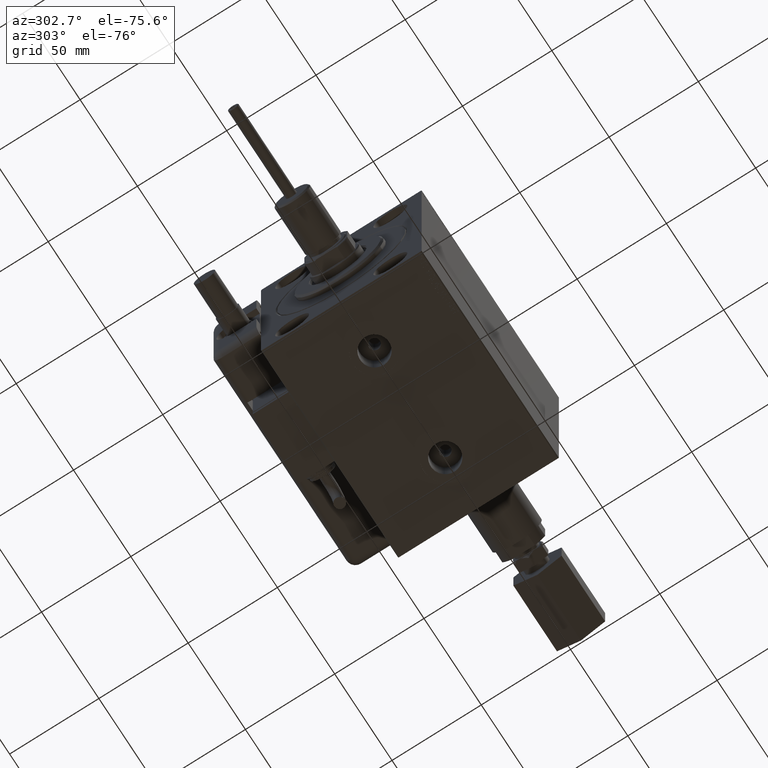
[diagram: clean part render]
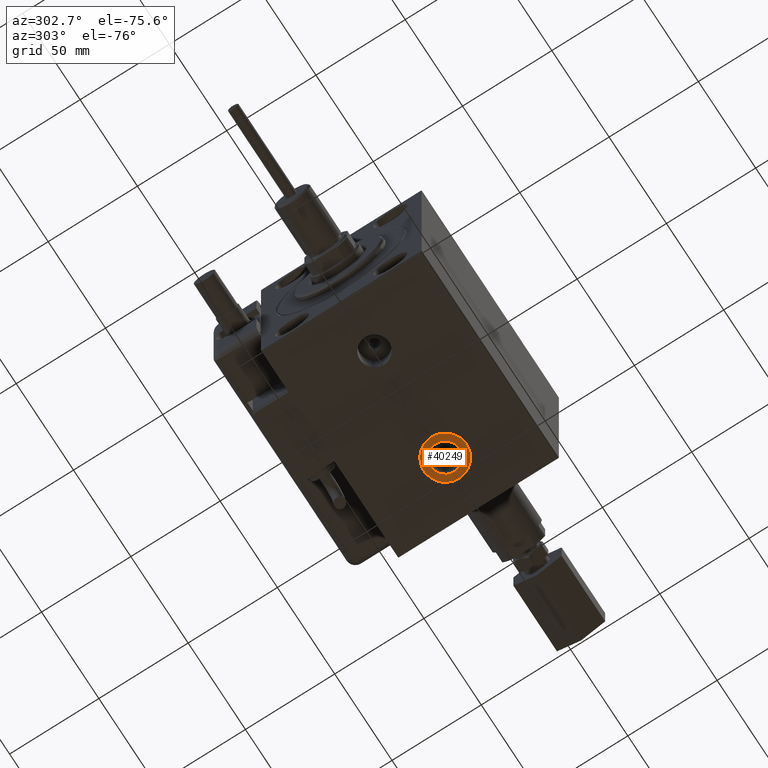
[diagram: same view with one face highlighted and labeled with its STEP entity id]
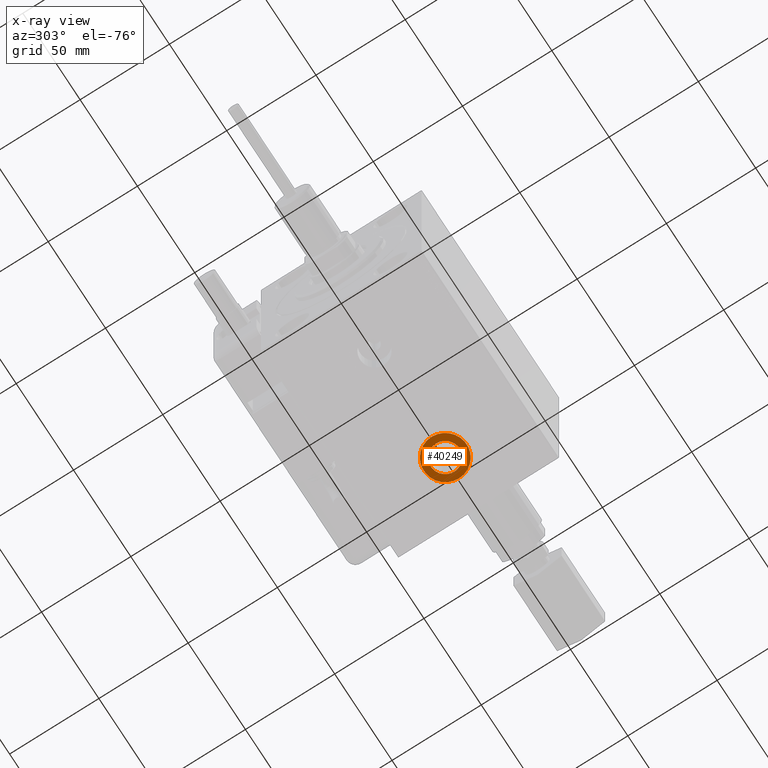
[diagram: x-ray of the same camera — body ghosted, the highlighted face saturated]
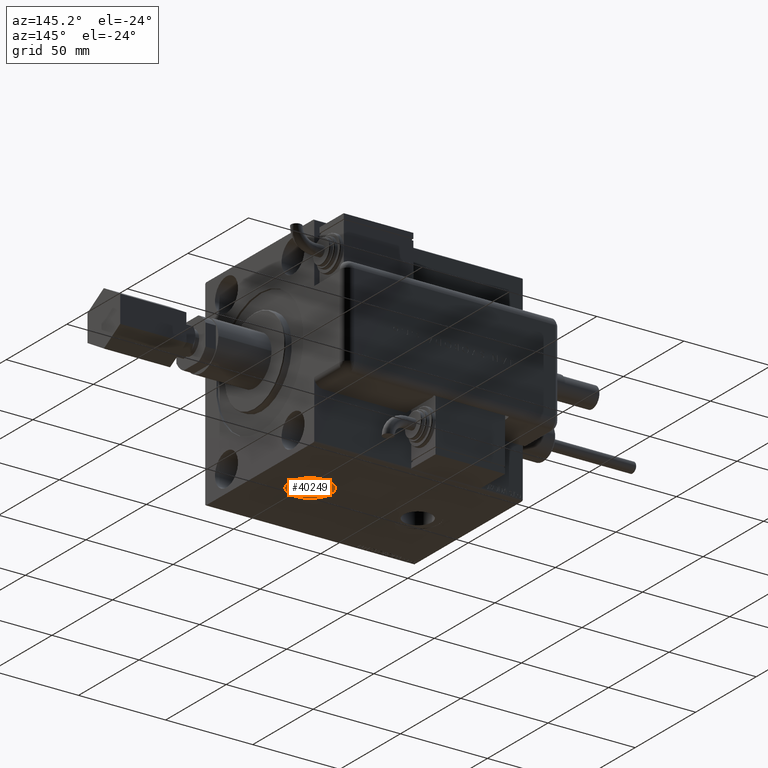
[diagram: same view with one face highlighted and labeled with its STEP entity id]
A machine part, auxiliary view. The second image highlights one B-rep face of the part: STEP entity #40249.
The next image is the same camera in x-ray: the body ghosted, the highlighted face saturated — about 0% of this face is hidden behind the body in this view.
A second angle (auxiliary view) of the same face is appended — the face is thin or edge-on in the first view.
In plain terms, the highlighted planar face has unit normal (0, 0, -1).
Its self-contained STEP definition (entity closure, byte-faithful):
#2056 = DIRECTION ( 'NONE',  ( 0.000000000000000000, 0.000000000000000000, -1.000000000000000000 ) ) ;
#5287 = VERTEX_POINT ( 'NONE', #44372 ) ;
#6459 = CARTESIAN_POINT ( 'NONE',  ( 90.70000000000000284, -1.399743327393117014E-14, -57.40000000000001279 ) ) ;
#7296 = CARTESIAN_POINT ( 'NONE',  ( 82.61500000000000909, -1.399743327393117014E-14, -57.40000000000001279 ) ) ;
#7599 = CIRCLE ( 'NONE', #49071, 12.00000000000001066 ) ;
#10415 = FACE_OUTER_BOUND ( 'NONE', #31425, .T. ) ;
#12355 = AXIS2_PLACEMENT_3D ( 'NONE', #6459, #25325, #35528 ) ;
#12748 = CARTESIAN_POINT ( 'NONE',  ( 90.70000000000000284, -1.399743327393117014E-14, -57.40000000000001279 ) ) ;
#12880 = ORIENTED_EDGE ( 'NONE', *, *, #42923, .F. ) ;
#17171 = AXIS2_PLACEMENT_3D ( 'NONE', #30063, #44270, #57263 ) ;
#17603 = AXIS2_PLACEMENT_3D ( 'NONE', #12748, #54488, #46438 ) ;
#18348 = EDGE_CURVE ( 'NONE', #40367, #32809, #19025, .T. ) ;
#19025 = CIRCLE ( 'NONE', #17171, 8.084999999999995524 ) ;
#19707 = CARTESIAN_POINT ( 'NONE',  ( 90.70000000000000284, -1.399743327393117014E-14, -57.40000000000001279 ) ) ;
#21541 = DIRECTION ( 'NONE',  ( -1.000000000000000000, 0.000000000000000000, 0.000000000000000000 ) ) ;
#24148 = EDGE_CURVE ( 'NONE', #56095, #5287, #48272, .T. ) ;
#25325 = DIRECTION ( 'NONE',  ( 0.000000000000000000, 0.000000000000000000, -1.000000000000000000 ) ) ;
#26162 = CARTESIAN_POINT ( 'NONE',  ( 90.70000000000000284, -1.399743327393117014E-14, -57.40000000000001279 ) ) ;
#30063 = CARTESIAN_POINT ( 'NONE',  ( 90.70000000000000284, -1.399743327393117014E-14, -57.40000000000001279 ) ) ;
#31425 = EDGE_LOOP ( 'NONE', ( #35507, #36882 ) ) ;
#32809 = VERTEX_POINT ( 'NONE', #36311 ) ;
#33353 = CARTESIAN_POINT ( 'NONE',  ( 102.7000000000000171, -1.252785711495434678E-14, -57.40000000000001279 ) ) ;
#34273 = AXIS2_PLACEMENT_3D ( 'NONE', #19707, #2056, #39466 ) ;
#35507 = ORIENTED_EDGE ( 'NONE', *, *, #40380, .T. ) ;
#35528 = DIRECTION ( 'NONE',  ( -1.000000000000000000, 0.000000000000000000, 0.000000000000000000 ) ) ;
#36311 = CARTESIAN_POINT ( 'NONE',  ( 98.78499999999999659, -1.300730633682053577E-14, -57.40000000000001279 ) ) ;
#36882 = ORIENTED_EDGE ( 'NONE', *, *, #24148, .T. ) ;
#39466 = DIRECTION ( 'NONE',  ( -1.000000000000000000, 0.000000000000000000, -0.000000000000000000 ) ) ;
#40249 = ADVANCED_FACE ( 'NONE', ( #53068, #10415 ), #43798, .T. ) ;
#40367 = VERTEX_POINT ( 'NONE', #7296 ) ;
#40380 = EDGE_CURVE ( 'NONE', #5287, #56095, #7599, .T. ) ;
#42809 = EDGE_LOOP ( 'NONE', ( #57920, #12880 ) ) ;
#42923 = EDGE_CURVE ( 'NONE', #32809, #40367, #55099, .T. ) ;
#43798 = PLANE ( 'NONE',  #34273 ) ;
#44270 = DIRECTION ( 'NONE',  ( 0.000000000000000000, 0.000000000000000000, -1.000000000000000000 ) ) ;
#44372 = CARTESIAN_POINT ( 'NONE',  ( 78.69999999999998863, -1.399743327393117014E-14, -57.40000000000001279 ) ) ;
#45019 = DIRECTION ( 'NONE',  ( 0.000000000000000000, 0.000000000000000000, -1.000000000000000000 ) ) ;
#46438 = DIRECTION ( 'NONE',  ( -1.000000000000000000, 0.000000000000000000, 0.000000000000000000 ) ) ;
#48272 = CIRCLE ( 'NONE', #12355, 12.00000000000001066 ) ;
#49071 = AXIS2_PLACEMENT_3D ( 'NONE', #26162, #45019, #21541 ) ;
#53068 = FACE_BOUND ( 'NONE', #42809, .T. ) ;
#54488 = DIRECTION ( 'NONE',  ( 0.000000000000000000, 0.000000000000000000, -1.000000000000000000 ) ) ;
#55099 = CIRCLE ( 'NONE', #17603, 8.084999999999995524 ) ;
#56095 = VERTEX_POINT ( 'NONE', #33353 ) ;
#57263 = DIRECTION ( 'NONE',  ( -1.000000000000000000, 0.000000000000000000, 0.000000000000000000 ) ) ;
#57920 = ORIENTED_EDGE ( 'NONE', *, *, #18348, .F. ) ;